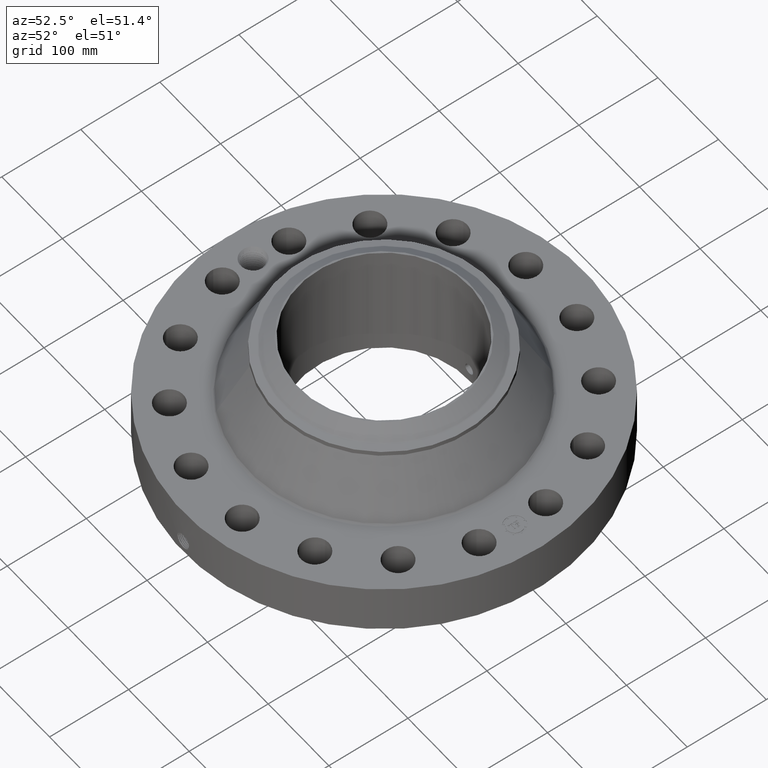
[diagram: clean part render]
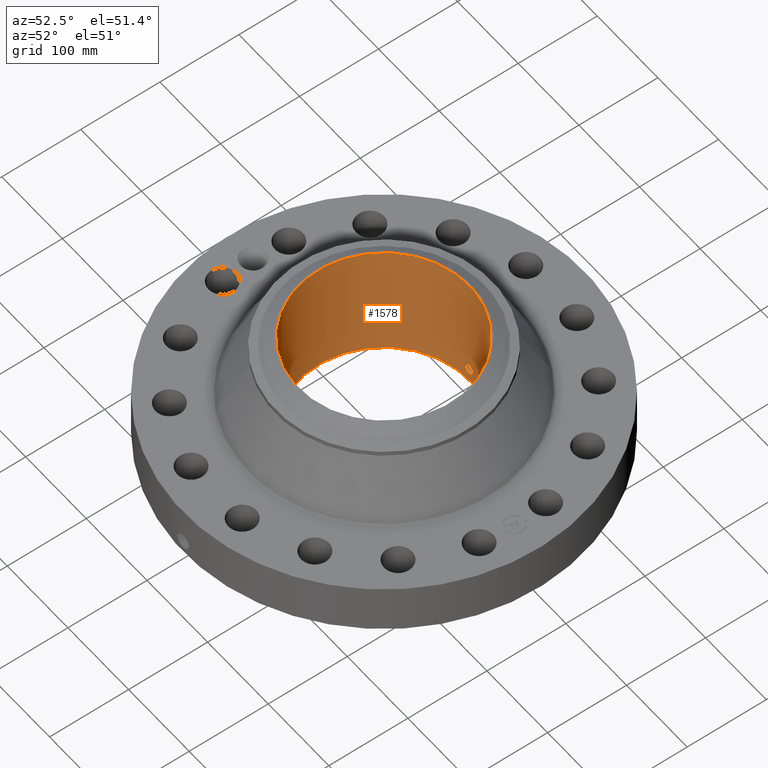
[diagram: same view with one face highlighted and labeled with its STEP entity id]
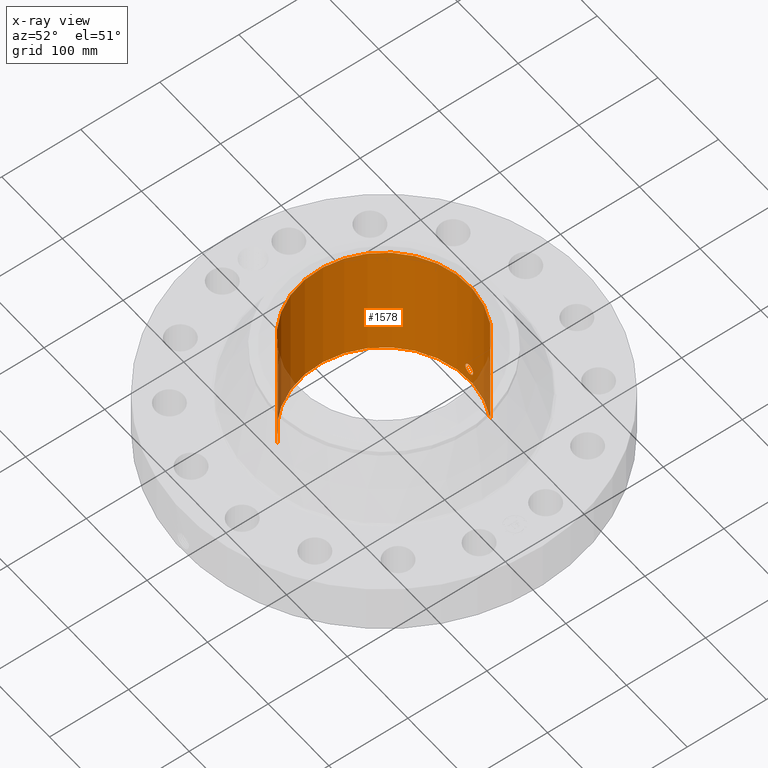
[diagram: x-ray of the same camera — body ghosted, the highlighted face saturated]
A machine part, auxiliary view. The second image highlights one B-rep face of the part: STEP entity #1578.
The next image is the same camera in x-ray: the body ghosted, the highlighted face saturated — about 5% of this face is hidden behind the body in this view.
In plain terms, the highlighted cylindrical surface (partial cylindrical patch) has radius 107.95 mm, axis along (0, 0, -1).
Its self-contained STEP definition (entity closure, byte-faithful):
#267=AXIS2_PLACEMENT_3D('Circle Axis2P3D',#265,#266,$) ;
#1455=AXIS2_PLACEMENT_3D('Cylinder Axis2P3D',#1452,#1453,#1454) ;
#1527=AXIS2_PLACEMENT_3D('Circle Axis2P3D',#1525,#1526,$) ;
#260=CARTESIAN_POINT('Vertex',(2.03755853908,3.72972588805,0.250000000001)) ;
#262=CARTESIAN_POINT('Vertex',(-2.03755853908,-3.72972588805,0.250000000001)) ;
#265=CARTESIAN_POINT('Axis2P3D Location',(0.,0.,0.250000000001)) ;
#1452=CARTESIAN_POINT('Axis2P3D Location',(0.,0.,3.25000000001)) ;
#1461=CARTESIAN_POINT('Vertex',(2.03755853908,3.72972588805,6.25000000002)) ;
#1463=CARTESIAN_POINT('Vertex',(-2.03755853908,-3.72972588805,6.25000000002)) ;
#1466=CARTESIAN_POINT('Line Origine',(2.03755853908,3.72972588805,3.25000000001)) ;
#1471=CARTESIAN_POINT('Line Origine',(-2.03755853908,-3.72972588805,3.25000000001)) ;
#1525=CARTESIAN_POINT('Axis2P3D Location',(0.,0.,6.25000000002)) ;
#1537=CARTESIAN_POINT('Control Point',(0.219395640473,4.24433334613,1.05985638466)) ;
#1538=CARTESIAN_POINT('Control Point',(0.20692185022,4.24497813413,1.08268950456)) ;
#1539=CARTESIAN_POINT('Control Point',(0.191478963081,4.24573045207,1.1038975414)) ;
#1540=CARTESIAN_POINT('Control Point',(0.173347039398,4.2465321409,1.12296819141)) ;
#1541=CARTESIAN_POINT('Control Point',(0.112149472965,4.24885047267,1.17244000846)) ;
#1542=CARTESIAN_POINT('Control Point',(0.0350042652184,4.25035667953,1.19596825406)) ;
#1543=CARTESIAN_POINT('Control Point',(-0.0195366265517,4.25046953931,1.19761227603)) ;
#1544=CARTESIAN_POINT('Control Point',(-0.124114958796,4.24881265556,1.17248211967)) ;
#1545=CARTESIAN_POINT('Control Point',(-0.203155646829,4.24538131819,1.09959823574)) ;
#1546=CARTESIAN_POINT('Control Point',(-0.232140048684,4.24369101348,1.05339901686)) ;
#1547=CARTESIAN_POINT('Control Point',(-0.255828648884,4.24229815736,0.975236726373)) ;
#1548=CARTESIAN_POINT('Control Point',(-0.248303760666,4.24274022708,0.895832970179)) ;
#1549=CARTESIAN_POINT('Control Point',(-0.242069484876,4.2431119127,0.869236850832)) ;
#1550=CARTESIAN_POINT('Control Point',(-0.232328370462,4.24366483488,0.843816818804)) ;
#1551=CARTESIAN_POINT('Control Point',(-0.219395640473,4.24433334613,0.820143615352)) ;
#1552=CARTESIAN_POINT('Vertex',(0.219395640473,4.24433334613,1.05985638466)) ;
#1554=CARTESIAN_POINT('Vertex',(-0.219395640473,4.24433334613,0.820143615352)) ;
#1558=CARTESIAN_POINT('Control Point',(-0.219395640473,4.24433334613,0.820143615352)) ;
#1559=CARTESIAN_POINT('Control Point',(-0.206921850215,4.24497813413,0.797310495441)) ;
#1560=CARTESIAN_POINT('Control Point',(-0.191478963068,4.24573045207,0.776102458592)) ;
#1561=CARTESIAN_POINT('Control Point',(-0.173347039418,4.2465321409,0.757031808616)) ;
#1562=CARTESIAN_POINT('Control Point',(-0.112149472971,4.24885047267,0.707559991549)) ;
#1563=CARTESIAN_POINT('Control Point',(-0.035004265204,4.25035667953,0.684031745937)) ;
#1564=CARTESIAN_POINT('Control Point',(0.0195366265275,4.25046953931,0.682387723976)) ;
#1565=CARTESIAN_POINT('Control Point',(0.124114958759,4.24881265556,0.707517880324)) ;
#1566=CARTESIAN_POINT('Control Point',(0.203155646787,4.24538131819,0.780401764233)) ;
#1567=CARTESIAN_POINT('Control Point',(0.232140048698,4.24369101348,0.826600983197)) ;
#1568=CARTESIAN_POINT('Control Point',(0.255828648869,4.24229815736,0.90476327362)) ;
#1569=CARTESIAN_POINT('Control Point',(0.248303760674,4.24274022708,0.984167029751)) ;
#1570=CARTESIAN_POINT('Control Point',(0.242069484849,4.2431119127,1.01076314924)) ;
#1571=CARTESIAN_POINT('Control Point',(0.232328370444,4.24366483489,1.03618318124)) ;
#1572=CARTESIAN_POINT('Control Point',(0.219395640473,4.24433334613,1.05985638466)) ;
#266=DIRECTION('Axis2P3D Direction',(0.,0.,-0.0393700787402)) ;
#1453=DIRECTION('Axis2P3D Direction',(0.,0.,-0.0393700787402)) ;
#1454=DIRECTION('Axis2P3D XDirection',(-0.0188750212049,-0.0345504945626,0.)) ;
#1467=DIRECTION('Vector Direction',(0.,0.,-0.0393700787402)) ;
#1472=DIRECTION('Vector Direction',(0.,0.,-0.0393700787402)) ;
#1526=DIRECTION('Axis2P3D Direction',(0.,0.,-0.0393700787402)) ;
#1468=VECTOR('Line Direction',#1467,0.0393700787402) ;
#1473=VECTOR('Line Direction',#1472,0.0393700787402) ;
#1531=ORIENTED_EDGE('',*,*,#1529,.F.) ;
#1532=ORIENTED_EDGE('',*,*,#1475,.T.) ;
#1533=ORIENTED_EDGE('',*,*,#269,.T.) ;
#1534=ORIENTED_EDGE('',*,*,#1470,.F.) ;
#1575=ORIENTED_EDGE('',*,*,#1556,.F.) ;
#1576=ORIENTED_EDGE('',*,*,#1573,.F.) ;
#1577=FACE_BOUND('',#1574,.T.) ;
#1578=ADVANCED_FACE('PartBody',(#1535,#1577),#1456,.F.) ;
#1536=B_SPLINE_CURVE_WITH_KNOTS('',5,(#1537,#1538,#1539,#1540,#1541,#1542,#1543,#1544,#1545,#1546,#1547,#1548,#1549,#1550,#1551),.UNSPECIFIED.,.F.,.U.,(6,3,3,3,6),(0.,4.67443701842,14.021659382,23.3716206847,28.2180411052),.UNSPECIFIED.) ;
#1557=B_SPLINE_CURVE_WITH_KNOTS('',5,(#1558,#1559,#1560,#1561,#1562,#1563,#1564,#1565,#1566,#1567,#1568,#1569,#1570,#1571,#1572),.UNSPECIFIED.,.F.,.U.,(6,3,3,3,6),(0.,4.67443702027,14.0216593856,23.3716206837,28.2180410976),.UNSPECIFIED.) ;
#268=CIRCLE('generated circle',#267,4.25000000002) ;
#1528=CIRCLE('generated circle',#1527,4.25000000002) ;
#1456=CYLINDRICAL_SURFACE('generated cylinder',#1455,4.25000000002) ;
#269=EDGE_CURVE('',#263,#261,#268,.T.) ;
#1470=EDGE_CURVE('',#1462,#261,#1469,.T.) ;
#1475=EDGE_CURVE('',#1464,#263,#1474,.T.) ;
#1529=EDGE_CURVE('',#1464,#1462,#1528,.T.) ;
#1556=EDGE_CURVE('',#1553,#1555,#1536,.T.) ;
#1573=EDGE_CURVE('',#1555,#1553,#1557,.T.) ;
#1530=EDGE_LOOP('',(#1531,#1532,#1533,#1534)) ;
#1574=EDGE_LOOP('',(#1575,#1576)) ;
#1535=FACE_OUTER_BOUND('',#1530,.T.) ;
#1469=LINE('Line',#1466,#1468) ;
#1474=LINE('Line',#1471,#1473) ;
#261=VERTEX_POINT('',#260) ;
#263=VERTEX_POINT('',#262) ;
#1462=VERTEX_POINT('',#1461) ;
#1464=VERTEX_POINT('',#1463) ;
#1553=VERTEX_POINT('',#1552) ;
#1555=VERTEX_POINT('',#1554) ;